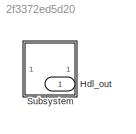
MODEL slx_2f3372ed5d20
KIND model
CONFIG AbsTol = auto
CONFIG EnableMultiTasking = off
CONFIG FixedStep = auto
CONFIG MaxStep = auto
CONFIG MinStep = auto
CONFIG RelTol = 1e-3
CONFIG SampleTimeConstraint = Unconstrained
CONFIG SolverName = VariableStepAuto
CONFIG StartTime = 0.0
CONFIG StopTime = 10.0
BLOCK [Outport] Hdl_out
  OutDataTypeStr = uint8
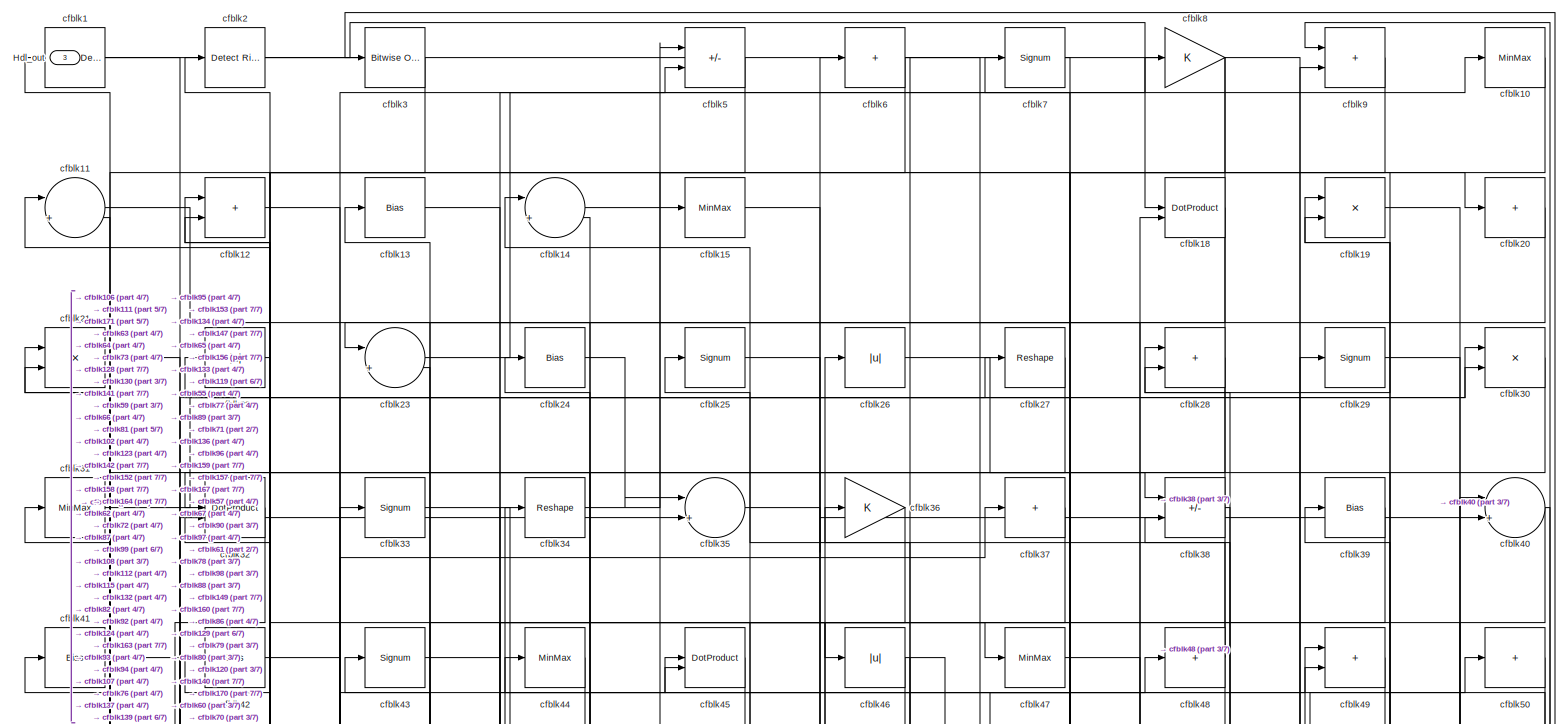
[diagram: Subsystem - part 1/7, full width, top band]
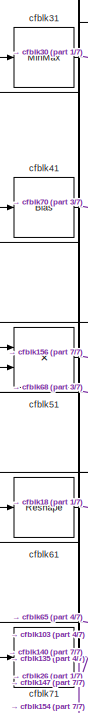
[diagram: Subsystem - part 2/7, top left region]
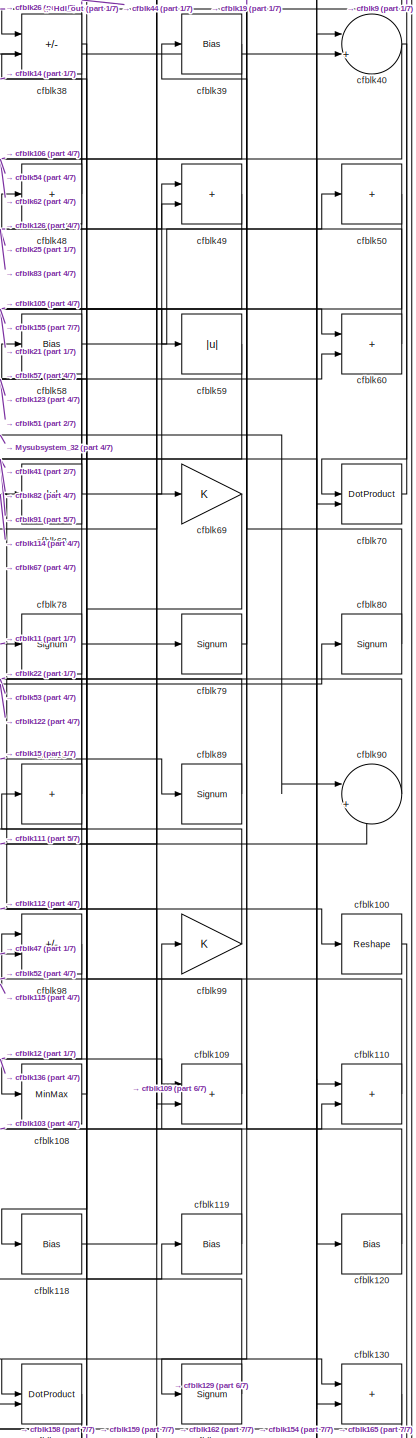
[diagram: Subsystem - part 3/7, middle right region]
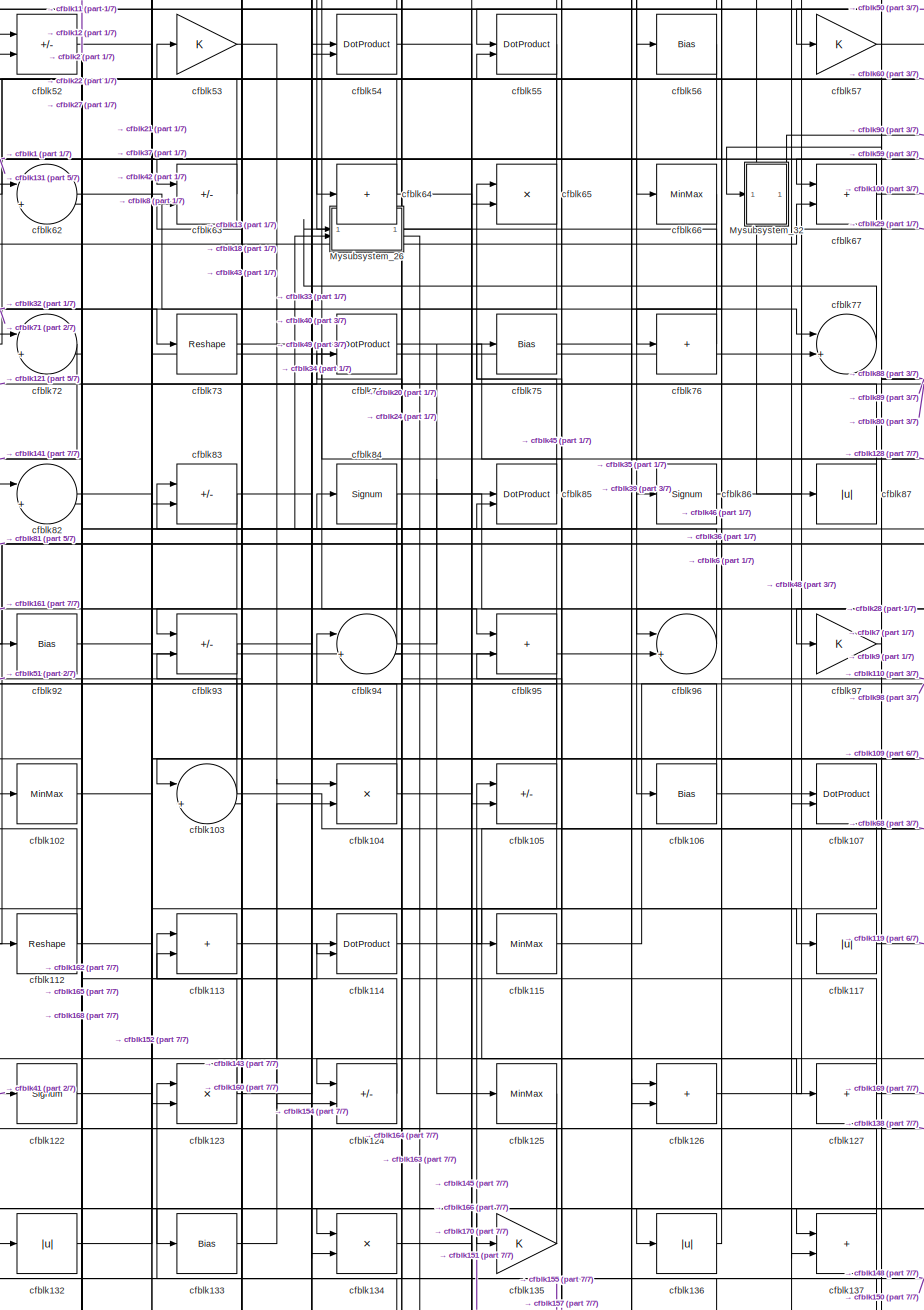
[diagram: Subsystem - part 4/7, central region]
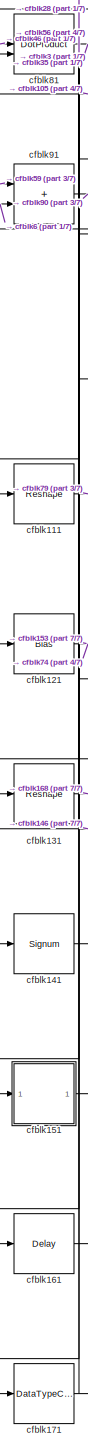
[diagram: Subsystem - part 5/7, bottom left region]
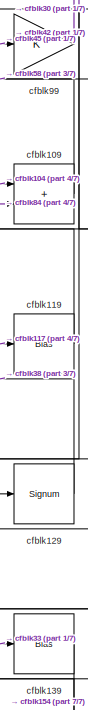
[diagram: Subsystem - part 6/7, middle right region]
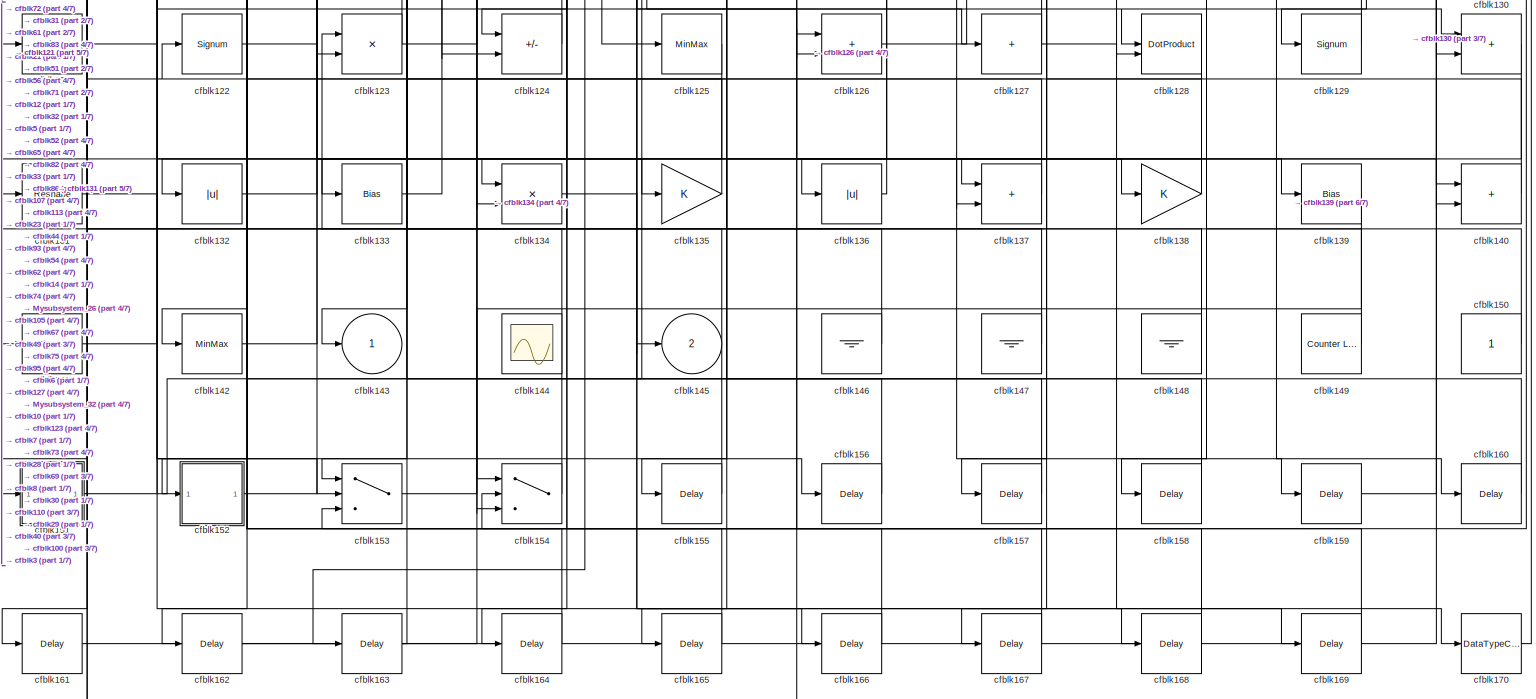
[diagram: Subsystem - part 7/7, full width, bottom band]
BLOCK [SubSystem] Subsystem
BLOCK [Outport] Subsystem/Hdl_out
  OutDataTypeStr = uint8
  Port = 3
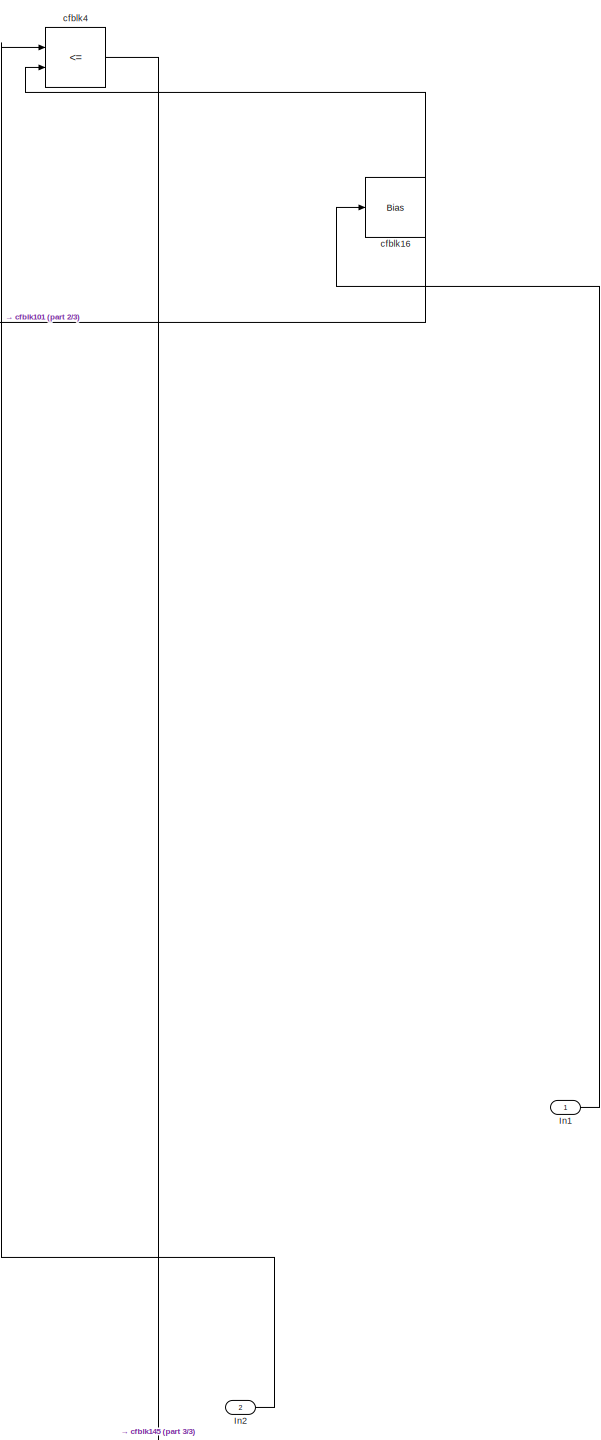
[diagram: Subsystem/Mysubsystem_26 - part 1/3, top right region]
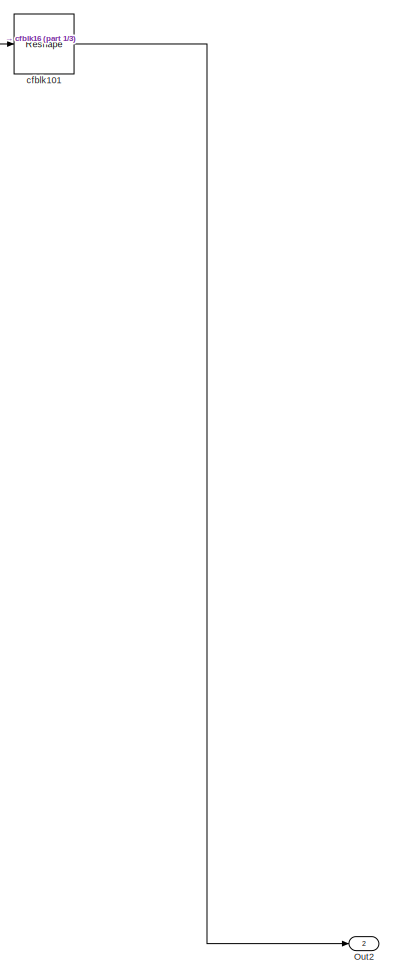
[diagram: Subsystem/Mysubsystem_26 - part 2/3, bottom left region]
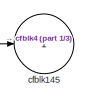
[diagram: Subsystem/Mysubsystem_26 - part 3/3, bottom center region]
BLOCK [SubSystem] Subsystem/Mysubsystem_26
  RTWFcnName = Mysubsystem_26
  RTWFcnNameOpts = User specified
  RTWFileNameOpts = Use function name
  RTWSystemCode = Reusable function
  TreatAsAtomicUnit = on
BLOCK [Inport] Subsystem/Mysubsystem_26/In1
BLOCK [Inport] Subsystem/Mysubsystem_26/In2
  Port = 2
BLOCK [Outport] Subsystem/Mysubsystem_26/Out2
  Port = 2
BLOCK [Reshape] Subsystem/Mysubsystem_26/cfblk101
BLOCK [Outport] Subsystem/Mysubsystem_26/cfblk145
  VectorParamsAs1DForOutWhenUnconnected = off
BLOCK [Bias] Subsystem/Mysubsystem_26/cfblk16
  Bias = 0.0
  SaturateOnIntegerOverflow = off
BLOCK [RelationalOperator] Subsystem/Mysubsystem_26/cfblk4
  InputSameDT = off
  Operator = <=
  OutDataTypeStr = boolean
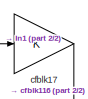
[diagram: Subsystem/Mysubsystem_32 - part 1/2, top left region]
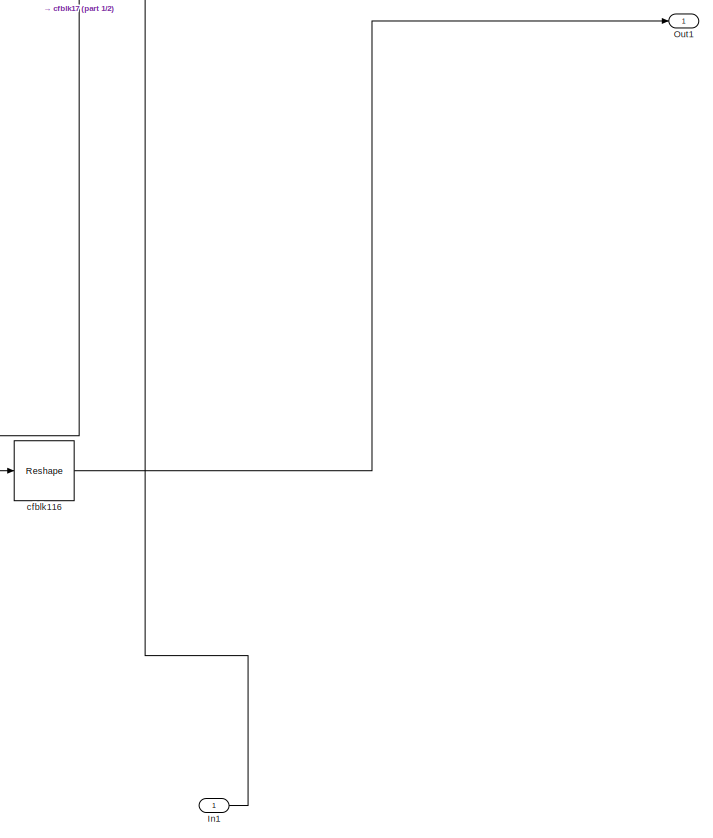
[diagram: Subsystem/Mysubsystem_32 - part 2/2, full width, bottom band]
BLOCK [SubSystem] Subsystem/Mysubsystem_32
  RTWFcnName = Mysubsystem_32
  RTWFcnNameOpts = User specified
  RTWFileNameOpts = Use function name
  RTWSystemCode = Reusable function
  TreatAsAtomicUnit = on
BLOCK [Inport] Subsystem/Mysubsystem_32/In1
BLOCK [Outport] Subsystem/Mysubsystem_32/Out1
BLOCK [Reshape] Subsystem/Mysubsystem_32/cfblk116
BLOCK [Gain] Subsystem/Mysubsystem_32/cfblk17
BLOCK [Reference] Subsystem/cfblk1  REF=simulink/Logic and Bit
Operations/Detect
Decrease
  LibrarySourceBlock = hdlsllib/Logic and Bit\nOperations/Detect\nDecrease
  SourceBlock = simulink/Logic and Bit\nOperations/Detect\nDecrease
  SourceType = Detect Decrease
BLOCK [MinMax] Subsystem/cfblk10
  OutDataTypeStr = uint8
BLOCK [Reshape] Subsystem/cfblk100
BLOCK [MinMax] Subsystem/cfblk102
  OutDataTypeStr = uint8
BLOCK [Sum] Subsystem/cfblk103
  Inputs = |++
  OutDataTypeStr = uint8
BLOCK [Product] Subsystem/cfblk104
  Inputs = */
  OutDataTypeStr = uint8
  RndMeth = Zero
  SaturateOnIntegerOverflow = on
BLOCK [Sum] Subsystem/cfblk105
  IconShape = rectangular
  Inputs = +-
  OutDataTypeStr = uint8
BLOCK [Bias] Subsystem/cfblk106
  Bias = 0.0
  SaturateOnIntegerOverflow = off
BLOCK [DotProduct] Subsystem/cfblk107
  OutDataTypeStr = uint8
BLOCK [MinMax] Subsystem/cfblk108
  OutDataTypeStr = uint8
BLOCK [Sum] Subsystem/cfblk109
  IconShape = rectangular
  OutDataTypeStr = uint8
BLOCK [Sum] Subsystem/cfblk11
  Inputs = |++
  OutDataTypeStr = uint8
BLOCK [Sum] Subsystem/cfblk110
  IconShape = rectangular
  OutDataTypeStr = uint8
BLOCK [Reshape] Subsystem/cfblk111
BLOCK [Reshape] Subsystem/cfblk112
BLOCK [Sum] Subsystem/cfblk113
  IconShape = rectangular
  OutDataTypeStr = uint8
BLOCK [DotProduct] Subsystem/cfblk114
  OutDataTypeStr = uint8
BLOCK [MinMax] Subsystem/cfblk115
  OutDataTypeStr = uint8
BLOCK [Abs] Subsystem/cfblk117
  OutDataTypeStr = uint8
  SaturateOnIntegerOverflow = off
BLOCK [Bias] Subsystem/cfblk118
  Bias = 0.0
  SaturateOnIntegerOverflow = off
BLOCK [Bias] Subsystem/cfblk119
  Bias = 0.0
  SaturateOnIntegerOverflow = off
BLOCK [Sum] Subsystem/cfblk12
  IconShape = rectangular
  OutDataTypeStr = uint8
BLOCK [Bias] Subsystem/cfblk120
  Bias = 0.0
  SaturateOnIntegerOverflow = off
BLOCK [Bias] Subsystem/cfblk121
  Bias = 0.0
  SaturateOnIntegerOverflow = off
BLOCK [Signum] Subsystem/cfblk122
BLOCK [Product] Subsystem/cfblk123
  Inputs = */
  OutDataTypeStr = uint8
  RndMeth = Zero
  SaturateOnIntegerOverflow = on
BLOCK [Sum] Subsystem/cfblk124
  IconShape = rectangular
  Inputs = +-
  OutDataTypeStr = uint8
BLOCK [MinMax] Subsystem/cfblk125
  OutDataTypeStr = uint8
BLOCK [Sum] Subsystem/cfblk126
  IconShape = rectangular
  OutDataTypeStr = uint8
BLOCK [Sum] Subsystem/cfblk127
  IconShape = rectangular
  Inputs = +
  OutDataTypeStr = uint8
BLOCK [DotProduct] Subsystem/cfblk128
  OutDataTypeStr = uint8
BLOCK [Signum] Subsystem/cfblk129
BLOCK [Bias] Subsystem/cfblk13
  Bias = 0.0
  SaturateOnIntegerOverflow = off
BLOCK [Sum] Subsystem/cfblk130
  IconShape = rectangular
  OutDataTypeStr = uint8
BLOCK [Reshape] Subsystem/cfblk131
BLOCK [Abs] Subsystem/cfblk132
  OutDataTypeStr = uint8
  SaturateOnIntegerOverflow = off
BLOCK [Bias] Subsystem/cfblk133
  Bias = 0.0
  SaturateOnIntegerOverflow = off
BLOCK [Product] Subsystem/cfblk134
  Inputs = */
  OutDataTypeStr = uint8
  RndMeth = Zero
  SaturateOnIntegerOverflow = on
BLOCK [Gain] Subsystem/cfblk135
  OutDataTypeStr = uint8
BLOCK [Abs] Subsystem/cfblk136
  OutDataTypeStr = uint8
  SaturateOnIntegerOverflow = off
BLOCK [Sum] Subsystem/cfblk137
  IconShape = rectangular
  OutDataTypeStr = uint8
BLOCK [Gain] Subsystem/cfblk138
  OutDataTypeStr = uint8
BLOCK [Bias] Subsystem/cfblk139
  Bias = 0.0
  SaturateOnIntegerOverflow = off
BLOCK [Sum] Subsystem/cfblk14
  Inputs = |++
  OutDataTypeStr = uint8
BLOCK [Sum] Subsystem/cfblk140
  IconShape = rectangular
  OutDataTypeStr = uint8
BLOCK [Signum] Subsystem/cfblk141
BLOCK [MinMax] Subsystem/cfblk142
  OutDataTypeStr = uint8
BLOCK [Outport] Subsystem/cfblk143
  OutDataTypeStr = uint8
  VectorParamsAs1DForOutWhenUnconnected = off
BLOCK [Scope] Subsystem/cfblk144
  Floating = on
  NumInputPorts = 1
  ScopeSpecificationString = Simulink.scopes.TimeScopeBlockCfg('CurrentConfiguration', extmgr.ConfigurationSet(extmgr.Configuration('Core','General UI',true,'FigureColor',[0.156862745098039 0.156862745098039 0.156862745098039]),extmgr.Configuration('Core','Source UI',true),extmgr.Configuration('Sources','WiredSimulink',true,'DataLoggingSaveFormat','StructureWithTime','DataLoggingLimitDataPoints',true,'DataLoggingDecimation','...<+2674ch>
BLOCK [Outport] Subsystem/cfblk145
  OutDataTypeStr = uint8
  Port = 2
  VectorParamsAs1DForOutWhenUnconnected = off
BLOCK [Ground] Subsystem/cfblk146
BLOCK [Ground] Subsystem/cfblk147
BLOCK [Ground] Subsystem/cfblk148
BLOCK [Reference] Subsystem/cfblk149  REF=hdlsllib/Sources/Counter
Limited
  SourceBlock = hdlsllib/Sources/Counter\nLimited
  SourceType = Counter Limited
BLOCK [MinMax] Subsystem/cfblk15
  OutDataTypeStr = uint8
BLOCK [Constant] Subsystem/cfblk150
  OutDataTypeStr = uint8
  SampleTime = -1
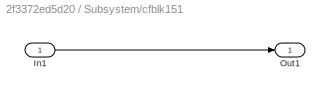
BLOCK [SubSystem] Subsystem/cfblk151
  LibrarySourceBlock = hdlsllib/Ports &\nSubsystems/Subsystem
BLOCK [Inport] Subsystem/cfblk151/In1
BLOCK [Outport] Subsystem/cfblk151/Out1
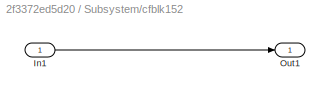
BLOCK [SubSystem] Subsystem/cfblk152
  LibrarySourceBlock = hdlsllib/Ports &\nSubsystems/Subsystem
BLOCK [Inport] Subsystem/cfblk152/In1
BLOCK [Outport] Subsystem/cfblk152/Out1
BLOCK [Switch] Subsystem/cfblk153
  InputSameDT = off
  OutDataTypeStr = uint8
  SaturateOnIntegerOverflow = off
BLOCK [Switch] Subsystem/cfblk154
  InputSameDT = off
  OutDataTypeStr = uint8
  SaturateOnIntegerOverflow = off
BLOCK [Delay] Subsystem/cfblk155
  InputPortMap = u0
  SampleTime = 1
BLOCK [Delay] Subsystem/cfblk156
  InputPortMap = u0
  SampleTime = 1
BLOCK [Delay] Subsystem/cfblk157
  InputPortMap = u0
  SampleTime = 1
BLOCK [Delay] Subsystem/cfblk158
  InputPortMap = u0
  SampleTime = 1
BLOCK [Delay] Subsystem/cfblk159
  InputPortMap = u0
  SampleTime = 1
BLOCK [Delay] Subsystem/cfblk160
  InputPortMap = u0
  SampleTime = 1
BLOCK [Delay] Subsystem/cfblk161
  InputPortMap = u0
  SampleTime = 1
BLOCK [Delay] Subsystem/cfblk162
  InputPortMap = u0
  SampleTime = 1
BLOCK [Delay] Subsystem/cfblk163
  InputPortMap = u0
  SampleTime = 1
BLOCK [Delay] Subsystem/cfblk164
  InputPortMap = u0
  SampleTime = 1
BLOCK [Delay] Subsystem/cfblk165
  InputPortMap = u0
  SampleTime = 1
BLOCK [Delay] Subsystem/cfblk166
  InputPortMap = u0
  SampleTime = 1
BLOCK [Delay] Subsystem/cfblk167
  InputPortMap = u0
  SampleTime = 1
BLOCK [Delay] Subsystem/cfblk168
  InputPortMap = u0
  SampleTime = 1
BLOCK [Delay] Subsystem/cfblk169
  InputPortMap = u0
  SampleTime = 1
BLOCK [DataTypeConversion] Subsystem/cfblk170
  OutDataTypeStr = uint8
  RndMeth = Floor
  SaturateOnIntegerOverflow = off
BLOCK [DataTypeConversion] Subsystem/cfblk171
  OutDataTypeStr = uint8
  RndMeth = Floor
  SaturateOnIntegerOverflow = off
BLOCK [DotProduct] Subsystem/cfblk18
  OutDataTypeStr = uint8
BLOCK [Product] Subsystem/cfblk19
  Inputs = */
  OutDataTypeStr = uint8
  RndMeth = Zero
  SaturateOnIntegerOverflow = on
BLOCK [Reference] Subsystem/cfblk2  REF=hdlsllib/Logic and Bit
Operations/Detect Rise
Positive
  SourceBlock = hdlsllib/Logic and Bit\nOperations/Detect Rise\nPositive
  SourceType = Detect Rise Positive
BLOCK [Sum] Subsystem/cfblk20
  IconShape = rectangular
  Inputs = +
  OutDataTypeStr = uint8
BLOCK [Product] Subsystem/cfblk21
  Inputs = */
  OutDataTypeStr = uint8
  RndMeth = Zero
  SaturateOnIntegerOverflow = on
BLOCK [Abs] Subsystem/cfblk22
  OutDataTypeStr = uint8
  SaturateOnIntegerOverflow = off
BLOCK [Sum] Subsystem/cfblk23
  Inputs = |++
  OutDataTypeStr = uint8
BLOCK [Bias] Subsystem/cfblk24
  Bias = 0.0
  SaturateOnIntegerOverflow = off
BLOCK [Signum] Subsystem/cfblk25
BLOCK [Abs] Subsystem/cfblk26
  OutDataTypeStr = uint8
  SaturateOnIntegerOverflow = off
BLOCK [Reshape] Subsystem/cfblk27
BLOCK [Sum] Subsystem/cfblk28
  IconShape = rectangular
  OutDataTypeStr = uint8
BLOCK [Signum] Subsystem/cfblk29
BLOCK [Reference] Subsystem/cfblk3  REF=simulink/Logic and Bit
Operations/Bitwise
Operator
  LibrarySourceBlock = hdlsllib/Logic and Bit\nOperations/Bitwise\nOperator
  SourceBlock = simulink/Logic and Bit\nOperations/Bitwise\nOperator
  SourceType = Bitwise Operator
BLOCK [Product] Subsystem/cfblk30
  Inputs = */
  OutDataTypeStr = uint8
  RndMeth = Zero
  SaturateOnIntegerOverflow = on
BLOCK [MinMax] Subsystem/cfblk31
  OutDataTypeStr = uint8
BLOCK [DotProduct] Subsystem/cfblk32
  OutDataTypeStr = uint8
BLOCK [Signum] Subsystem/cfblk33
BLOCK [Reshape] Subsystem/cfblk34
BLOCK [Sum] Subsystem/cfblk35
  Inputs = |++
  OutDataTypeStr = uint8
BLOCK [Gain] Subsystem/cfblk36
  OutDataTypeStr = uint8
BLOCK [Sum] Subsystem/cfblk37
  IconShape = rectangular
  Inputs = +
  OutDataTypeStr = uint8
BLOCK [Sum] Subsystem/cfblk38
  IconShape = rectangular
  Inputs = +-
  OutDataTypeStr = uint8
BLOCK [Bias] Subsystem/cfblk39
  Bias = 0.0
  SaturateOnIntegerOverflow = off
BLOCK [Sum] Subsystem/cfblk40
  Inputs = |++
  OutDataTypeStr = uint8
BLOCK [Bias] Subsystem/cfblk41
  Bias = 0.0
  SaturateOnIntegerOverflow = off
BLOCK [Bias] Subsystem/cfblk42
  Bias = 0.0
  SaturateOnIntegerOverflow = off
BLOCK [Signum] Subsystem/cfblk43
BLOCK [MinMax] Subsystem/cfblk44
  OutDataTypeStr = uint8
BLOCK [DotProduct] Subsystem/cfblk45
  OutDataTypeStr = uint8
BLOCK [Abs] Subsystem/cfblk46
  OutDataTypeStr = uint8
  SaturateOnIntegerOverflow = off
BLOCK [MinMax] Subsystem/cfblk47
  OutDataTypeStr = uint8
BLOCK [Sum] Subsystem/cfblk48
  IconShape = rectangular
  Inputs = +
  OutDataTypeStr = uint8
BLOCK [Sum] Subsystem/cfblk49
  IconShape = rectangular
  OutDataTypeStr = uint8
BLOCK [Sum] Subsystem/cfblk5
  IconShape = rectangular
  Inputs = +-
  OutDataTypeStr = uint8
BLOCK [Sum] Subsystem/cfblk50
  IconShape = rectangular
  Inputs = +
  OutDataTypeStr = uint8
BLOCK [Product] Subsystem/cfblk51
  Inputs = */
  OutDataTypeStr = uint8
  RndMeth = Zero
  SaturateOnIntegerOverflow = on
BLOCK [Sum] Subsystem/cfblk52
  IconShape = rectangular
  Inputs = +-
  OutDataTypeStr = uint8
BLOCK [Gain] Subsystem/cfblk53
  OutDataTypeStr = uint8
BLOCK [DotProduct] Subsystem/cfblk54
  OutDataTypeStr = uint8
BLOCK [DotProduct] Subsystem/cfblk55
  OutDataTypeStr = uint8
BLOCK [Bias] Subsystem/cfblk56
  Bias = 0.0
  SaturateOnIntegerOverflow = off
BLOCK [Gain] Subsystem/cfblk57
  OutDataTypeStr = uint8
BLOCK [Bias] Subsystem/cfblk58
  Bias = 0.0
  SaturateOnIntegerOverflow = off
BLOCK [Abs] Subsystem/cfblk59
  OutDataTypeStr = uint8
  SaturateOnIntegerOverflow = off
BLOCK [Sum] Subsystem/cfblk6
  IconShape = rectangular
  Inputs = +
  OutDataTypeStr = uint8
BLOCK [Sum] Subsystem/cfblk60
  IconShape = rectangular
  OutDataTypeStr = uint8
BLOCK [Reshape] Subsystem/cfblk61
BLOCK [Sum] Subsystem/cfblk62
  Inputs = |++
  OutDataTypeStr = uint8
BLOCK [Sum] Subsystem/cfblk63
  IconShape = rectangular
  Inputs = +-
  OutDataTypeStr = uint8
BLOCK [Sum] Subsystem/cfblk64
  IconShape = rectangular
  Inputs = +
  OutDataTypeStr = uint8
BLOCK [Product] Subsystem/cfblk65
  Inputs = */
  OutDataTypeStr = uint8
  RndMeth = Zero
  SaturateOnIntegerOverflow = on
BLOCK [MinMax] Subsystem/cfblk66
  OutDataTypeStr = uint8
BLOCK [Sum] Subsystem/cfblk67
  IconShape = rectangular
  OutDataTypeStr = uint8
BLOCK [Abs] Subsystem/cfblk68
  OutDataTypeStr = uint8
  SaturateOnIntegerOverflow = off
BLOCK [Gain] Subsystem/cfblk69
  OutDataTypeStr = uint8
BLOCK [Signum] Subsystem/cfblk7
BLOCK [DotProduct] Subsystem/cfblk70
  OutDataTypeStr = uint8
BLOCK [MinMax] Subsystem/cfblk71
  OutDataTypeStr = uint8
BLOCK [Sum] Subsystem/cfblk72
  Inputs = |++
  OutDataTypeStr = uint8
BLOCK [Reshape] Subsystem/cfblk73
BLOCK [DotProduct] Subsystem/cfblk74
  OutDataTypeStr = uint8
BLOCK [Bias] Subsystem/cfblk75
  Bias = 0.0
  SaturateOnIntegerOverflow = off
BLOCK [Sum] Subsystem/cfblk76
  IconShape = rectangular
  Inputs = +
  OutDataTypeStr = uint8
BLOCK [Sum] Subsystem/cfblk77
  Inputs = |++
  OutDataTypeStr = uint8
BLOCK [Signum] Subsystem/cfblk78
BLOCK [Signum] Subsystem/cfblk79
BLOCK [Gain] Subsystem/cfblk8
  OutDataTypeStr = uint8
BLOCK [Signum] Subsystem/cfblk80
BLOCK [DotProduct] Subsystem/cfblk81
  OutDataTypeStr = uint8
BLOCK [Sum] Subsystem/cfblk82
  Inputs = |++
  OutDataTypeStr = uint8
BLOCK [Sum] Subsystem/cfblk83
  IconShape = rectangular
  Inputs = +-
  OutDataTypeStr = uint8
BLOCK [Signum] Subsystem/cfblk84
BLOCK [DotProduct] Subsystem/cfblk85
  OutDataTypeStr = uint8
BLOCK [Signum] Subsystem/cfblk86
BLOCK [Abs] Subsystem/cfblk87
  OutDataTypeStr = uint8
  SaturateOnIntegerOverflow = off
BLOCK [Sum] Subsystem/cfblk88
  IconShape = rectangular
  Inputs = +
  OutDataTypeStr = uint8
BLOCK [Signum] Subsystem/cfblk89
BLOCK [Sum] Subsystem/cfblk9
  IconShape = rectangular
  OutDataTypeStr = uint8
BLOCK [Sum] Subsystem/cfblk90
  Inputs = |++
  OutDataTypeStr = uint8
BLOCK [Sum] Subsystem/cfblk91
  IconShape = rectangular
  OutDataTypeStr = uint8
BLOCK [Bias] Subsystem/cfblk92
  Bias = 0.0
  SaturateOnIntegerOverflow = off
BLOCK [Sum] Subsystem/cfblk93
  IconShape = rectangular
  Inputs = +-
  OutDataTypeStr = uint8
BLOCK [Sum] Subsystem/cfblk94
  Inputs = |++
  OutDataTypeStr = uint8
BLOCK [Sum] Subsystem/cfblk95
  IconShape = rectangular
  OutDataTypeStr = uint8
BLOCK [Sum] Subsystem/cfblk96
  Inputs = |++
  OutDataTypeStr = uint8
BLOCK [Gain] Subsystem/cfblk97
  OutDataTypeStr = uint8
BLOCK [Sum] Subsystem/cfblk98
  IconShape = rectangular
  Inputs = +-
  OutDataTypeStr = uint8
BLOCK [Gain] Subsystem/cfblk99
  OutDataTypeStr = uint8
LINE Subsystem/Mysubsystem_26/In1:1 -> Subsystem/Mysubsystem_26/cfblk16:1
LINE Subsystem/Mysubsystem_26/In2:1 -> Subsystem/Mysubsystem_26/cfblk4:1
LINE Subsystem/Mysubsystem_26/cfblk101:1 -> Subsystem/Mysubsystem_26/Out2:1
NET Subsystem/Mysubsystem_26/cfblk16:1 -> Subsystem/Mysubsystem_26/cfblk101:1, Subsystem/Mysubsystem_26/cfblk4:2
LINE Subsystem/Mysubsystem_26/cfblk4:1 -> Subsystem/Mysubsystem_26/cfblk145:1
LINE Subsystem/Mysubsystem_26:1 -> Subsystem/cfblk145:1
LINE Subsystem/Mysubsystem_26:2 -> Subsystem/cfblk163:1
LINE Subsystem/Mysubsystem_32/In1:1 -> Subsystem/Mysubsystem_32/cfblk17:1
LINE Subsystem/Mysubsystem_32/cfblk116:1 -> Subsystem/Mysubsystem_32/Out1:1
LINE Subsystem/Mysubsystem_32/cfblk17:1 -> Subsystem/Mysubsystem_32/cfblk116:1
LINE Subsystem/Mysubsystem_32:1 -> Subsystem/cfblk90:1
LINE Subsystem/cfblk100:1 -> Subsystem/cfblk154:2
LINE Subsystem/cfblk102:1 -> Subsystem/cfblk135:1
NET Subsystem/cfblk103:1 -> Subsystem/cfblk110:2, Subsystem/cfblk117:1, Subsystem/cfblk51:1
NET Subsystem/cfblk104:1 -> Subsystem/cfblk109:1, Subsystem/cfblk94:1
NET Subsystem/cfblk105:1 -> Subsystem/cfblk164:1, Subsystem/cfblk81:2, Subsystem/cfblk92:1
NET Subsystem/cfblk106:1 -> Subsystem/cfblk107:1, Subsystem/cfblk1:1
LINE Subsystem/cfblk107:1 -> Subsystem/cfblk143:1
LINE Subsystem/cfblk108:1 -> Subsystem/cfblk88:1
LINE Subsystem/cfblk109:1 -> Subsystem/cfblk58:1
NET Subsystem/cfblk10:1 -> Subsystem/cfblk167:1, Subsystem/cfblk28:1
LINE Subsystem/cfblk110:1 -> Subsystem/cfblk52:1
LINE Subsystem/cfblk111:1 -> Subsystem/cfblk79:1
NET Subsystem/cfblk112:1 -> Subsystem/cfblk134:2, Subsystem/cfblk21:2, Subsystem/cfblk45:1
LINE Subsystem/cfblk113:1 -> Subsystem/cfblk114:2
LINE Subsystem/cfblk114:1 -> Subsystem/cfblk68:1
LINE Subsystem/cfblk115:1 -> Subsystem/cfblk98:1
LINE Subsystem/cfblk117:1 -> Subsystem/cfblk119:1
LINE Subsystem/cfblk118:1 -> Subsystem/cfblk69:1
NET Subsystem/cfblk119:1 -> Subsystem/cfblk45:2, Subsystem/cfblk99:1
LINE Subsystem/cfblk11:1 -> Subsystem/cfblk78:1
LINE Subsystem/cfblk120:1 -> Subsystem/cfblk39:1
NET Subsystem/cfblk121:1 -> Subsystem/cfblk153:2, Subsystem/cfblk74:1
NET Subsystem/cfblk122:1 -> Subsystem/cfblk55:2, Subsystem/cfblk80:1
NET Subsystem/cfblk123:1 -> Subsystem/cfblk12:1, Subsystem/cfblk60:2
LINE Subsystem/cfblk124:1 -> Subsystem/cfblk13:1
LINE Subsystem/cfblk125:1 -> Subsystem/cfblk132:1
LINE Subsystem/cfblk126:1 -> Subsystem/cfblk48:1
NET Subsystem/cfblk127:1 -> Subsystem/cfblk169:1, Subsystem/cfblk84:1
LINE Subsystem/cfblk128:1 -> Subsystem/cfblk151:1
LINE Subsystem/cfblk129:1 -> Subsystem/cfblk38:2
LINE Subsystem/cfblk12:1 -> Subsystem/cfblk108:1
LINE Subsystem/cfblk130:1 -> Subsystem/cfblk165:1
LINE Subsystem/cfblk131:1 -> Subsystem/cfblk168:1
NET Subsystem/cfblk132:1 -> Subsystem/cfblk114:1, Subsystem/cfblk37:1
NET Subsystem/cfblk133:1 -> Subsystem/cfblk104:2, Subsystem/cfblk83:1
LINE Subsystem/cfblk134:1 -> Subsystem/cfblk166:1
NET Subsystem/cfblk135:1 -> Subsystem/cfblk122:1, Subsystem/cfblk41:1
LINE Subsystem/cfblk136:1 -> Subsystem/cfblk36:1
LINE Subsystem/cfblk137:1 -> Subsystem/cfblk113:1
LINE Subsystem/cfblk138:1 -> Subsystem/cfblk72:2
LINE Subsystem/cfblk139:1 -> Subsystem/cfblk154:3
LINE Subsystem/cfblk13:1 -> Subsystem/cfblk107:2
LINE Subsystem/cfblk140:1 -> Subsystem/cfblk7:1
NET Subsystem/cfblk141:1 -> Subsystem/cfblk30:2, Subsystem/cfblk56:1
LINE Subsystem/cfblk142:1 -> Subsystem/cfblk33:1
LINE Subsystem/cfblk146:1 -> Subsystem/cfblk121:1
NET Subsystem/cfblk147:1 -> Subsystem/cfblk14:2, Subsystem/cfblk61:1
NET Subsystem/cfblk148:1 -> Subsystem/Mysubsystem_32:1, Subsystem/cfblk123:1
LINE Subsystem/cfblk149:1 -> Subsystem/cfblk28:2
LINE Subsystem/cfblk14:1 -> Subsystem/cfblk20:1
LINE Subsystem/cfblk150:1 -> Subsystem/cfblk75:1
LINE Subsystem/cfblk151/In1:1 -> Subsystem/cfblk151/Out1:1
NET Subsystem/cfblk151:1 -> Subsystem/cfblk105:1, Subsystem/cfblk67:2
LINE Subsystem/cfblk152/In1:1 -> Subsystem/cfblk152/Out1:1
LINE Subsystem/cfblk152:1 -> Subsystem/cfblk86:1
LINE Subsystem/cfblk153:1 -> Subsystem/cfblk5:2
LINE Subsystem/cfblk154:1 -> Subsystem/cfblk31:1
LINE Subsystem/cfblk155:1 -> Subsystem/cfblk113:2
LINE Subsystem/cfblk156:1 -> Subsystem/cfblk5:1
LINE Subsystem/cfblk157:1 -> Subsystem/cfblk95:2
LINE Subsystem/cfblk158:1 -> Subsystem/cfblk12:2
LINE Subsystem/cfblk159:1 -> Subsystem/cfblk40:1
LINE Subsystem/cfblk15:1 -> Subsystem/cfblk89:1
LINE Subsystem/cfblk160:1 -> Subsystem/cfblk93:2
LINE Subsystem/cfblk161:1 -> Subsystem/cfblk54:1
LINE Subsystem/cfblk162:1 -> Subsystem/cfblk110:1
LINE Subsystem/cfblk163:1 -> Subsystem/cfblk23:2
LINE Subsystem/cfblk164:1 -> Subsystem/cfblk32:2
LINE Subsystem/cfblk165:1 -> Subsystem/cfblk52:2
LINE Subsystem/cfblk166:1 -> Subsystem/cfblk126:1
LINE Subsystem/cfblk167:1 -> Subsystem/cfblk153:3
LINE Subsystem/cfblk168:1 -> Subsystem/cfblk82:2
LINE Subsystem/cfblk169:1 -> Subsystem/cfblk74:2
LINE Subsystem/cfblk170:1 -> Subsystem/cfblk3:1
NET Subsystem/cfblk171:1 -> Subsystem/cfblk6:1, Subsystem/cfblk91:2
LINE Subsystem/cfblk18:1 -> Subsystem/cfblk93:1
LINE Subsystem/cfblk19:1 -> Subsystem/cfblk120:1
LINE Subsystem/cfblk1:1 -> Subsystem/cfblk66:1
NET Subsystem/cfblk20:1 -> Subsystem/cfblk23:1, Subsystem/cfblk94:2
NET Subsystem/cfblk21:1 -> Subsystem/cfblk128:1, Subsystem/cfblk130:1, Subsystem/cfblk59:1
LINE Subsystem/cfblk22:1 -> Subsystem/cfblk62:1
LINE Subsystem/cfblk23:1 -> Subsystem/cfblk10:1
LINE Subsystem/cfblk24:1 -> Subsystem/cfblk35:1
LINE Subsystem/cfblk25:1 -> Subsystem/cfblk40:2
LINE Subsystem/cfblk26:1 -> Subsystem/cfblk38:1
LINE Subsystem/cfblk27:1 -> Subsystem/cfblk72:1
NET Subsystem/cfblk28:1 -> Subsystem/cfblk111:1, Subsystem/cfblk134:1, Subsystem/cfblk57:1
LINE Subsystem/cfblk29:1 -> Subsystem/cfblk140:1
LINE Subsystem/cfblk2:1 -> Subsystem/cfblk18:1
NET Subsystem/cfblk30:1 -> Subsystem/cfblk129:1, Subsystem/cfblk152:1
LINE Subsystem/cfblk31:1 -> Subsystem/cfblk30:1
LINE Subsystem/cfblk32:1 -> Subsystem/cfblk73:1
NET Subsystem/cfblk33:1 -> Subsystem/cfblk137:2, Subsystem/cfblk139:1, Subsystem/cfblk95:1
LINE Subsystem/cfblk34:1 -> Subsystem/cfblk15:1
LINE Subsystem/cfblk35:1 -> Subsystem/cfblk77:1
LINE Subsystem/cfblk36:1 -> Subsystem/cfblk63:1
NET Subsystem/cfblk37:1 -> Subsystem/cfblk46:1, Subsystem/cfblk55:1
LINE Subsystem/cfblk38:1 -> Subsystem/cfblk118:1
NET Subsystem/cfblk39:1 -> Subsystem/cfblk106:1, Subsystem/cfblk62:2
LINE Subsystem/cfblk3:1 -> Subsystem/cfblk171:1
NET Subsystem/cfblk40:1 -> Subsystem/cfblk130:2, Subsystem/cfblk54:2, Subsystem/cfblk70:1
NET Subsystem/cfblk41:1 -> Subsystem/cfblk65:2, Subsystem/cfblk70:2
NET Subsystem/cfblk42:1 -> Subsystem/cfblk115:1, Subsystem/cfblk96:2
LINE Subsystem/cfblk43:1 -> Subsystem/cfblk47:1
LINE Subsystem/cfblk44:1 -> Subsystem/cfblk153:1
LINE Subsystem/cfblk45:1 -> Subsystem/cfblk133:1
NET Subsystem/cfblk46:1 -> Subsystem/cfblk76:1, Subsystem/cfblk81:1, Subsystem/cfblk87:1
LINE Subsystem/cfblk47:1 -> Subsystem/cfblk98:2
LINE Subsystem/cfblk48:1 -> Subsystem/cfblk14:1
LINE Subsystem/cfblk49:1 -> Subsystem/cfblk155:1
LINE Subsystem/cfblk50:1 -> Subsystem/cfblk105:2
LINE Subsystem/cfblk51:1 -> Subsystem/cfblk156:1
LINE Subsystem/cfblk52:1 -> Subsystem/cfblk64:1
NET Subsystem/cfblk53:1 -> Subsystem/cfblk104:1, Subsystem/cfblk124:2
LINE Subsystem/cfblk54:1 -> Subsystem/cfblk170:1
LINE Subsystem/cfblk55:1 -> Subsystem/cfblk83:2
LINE Subsystem/cfblk56:1 -> Subsystem/cfblk131:1
LINE Subsystem/cfblk57:1 -> Subsystem/cfblk60:1
LINE Subsystem/cfblk58:1 -> Subsystem/cfblk50:1
NET Subsystem/cfblk59:1 -> Subsystem/cfblk82:1, Subsystem/cfblk91:1
LINE Subsystem/cfblk5:1 -> Subsystem/cfblk142:1
LINE Subsystem/cfblk60:1 -> Subsystem/cfblk25:1
LINE Subsystem/cfblk61:1 -> Subsystem/cfblk18:2
LINE Subsystem/cfblk62:1 -> Subsystem/cfblk154:1
LINE Subsystem/cfblk63:1 -> Subsystem/cfblk11:2
NET Subsystem/cfblk64:1 -> Subsystem/cfblk126:2, Subsystem/cfblk21:1
NET Subsystem/cfblk65:1 -> Subsystem/cfblk162:1, Subsystem/cfblk24:1, Subsystem/cfblk71:1
LINE Subsystem/cfblk66:1 -> Subsystem/cfblk124:1
LINE Subsystem/cfblk67:1 -> Subsystem/cfblk100:1
NET Subsystem/cfblk68:1 -> Subsystem/cfblk49:1, Subsystem/cfblk51:2
LINE Subsystem/cfblk69:1 -> Subsystem/cfblk158:1
NET Subsystem/cfblk6:1 -> Subsystem/cfblk159:1, Subsystem/cfblk32:1, Subsystem/cfblk96:1
LINE Subsystem/cfblk70:1 -> Subsystem/cfblk9:1
NET Subsystem/cfblk71:1 -> Subsystem/cfblk140:2, Subsystem/cfblk26:1
LINE Subsystem/cfblk72:1 -> Subsystem/cfblk141:1
LINE Subsystem/cfblk73:1 -> Subsystem/cfblk128:2
NET Subsystem/cfblk74:1 -> Subsystem/cfblk125:1, Subsystem/cfblk127:1
LINE Subsystem/cfblk75:1 -> Subsystem/cfblk138:1
LINE Subsystem/cfblk76:1 -> Subsystem/cfblk34:1
LINE Subsystem/cfblk77:1 -> Subsystem/Mysubsystem_26:1
LINE Subsystem/cfblk78:1 -> Subsystem/cfblk9:2
LINE Subsystem/cfblk79:1 -> Subsystem/cfblk19:1
NET Subsystem/cfblk7:1 -> Subsystem/cfblk157:1, Subsystem/cfblk97:1
LINE Subsystem/cfblk80:1 -> Subsystem/cfblk19:2
LINE Subsystem/cfblk81:1 -> Subsystem/cfblk35:2
LINE Subsystem/cfblk82:1 -> Subsystem/cfblk27:1
NET Subsystem/cfblk83:1 -> Subsystem/cfblk161:1, Subsystem/cfblk49:2
NET Subsystem/cfblk84:1 -> Subsystem/cfblk103:1, Subsystem/cfblk109:2
LINE Subsystem/cfblk85:1 -> Subsystem/cfblk65:1
LINE Subsystem/cfblk86:1 -> Subsystem/cfblk29:1
LINE Subsystem/cfblk87:1 -> Subsystem/cfblk2:1
NET Subsystem/cfblk88:1 -> Subsystem/Hdl_out:1, Subsystem/cfblk112:1, Subsystem/cfblk44:1
LINE Subsystem/cfblk89:1 -> Subsystem/cfblk53:1
NET Subsystem/cfblk8:1 -> Subsystem/cfblk102:1, Subsystem/cfblk160:1
LINE Subsystem/cfblk90:1 -> Subsystem/cfblk22:1
LINE Subsystem/cfblk91:1 -> Subsystem/cfblk90:2
NET Subsystem/cfblk92:1 -> Subsystem/cfblk77:2, Subsystem/cfblk8:1
NET Subsystem/cfblk93:1 -> Subsystem/cfblk123:2, Subsystem/cfblk63:2, Subsystem/cfblk85:2
NET Subsystem/cfblk94:1 -> Subsystem/cfblk43:1, Subsystem/cfblk85:1
NET Subsystem/cfblk95:1 -> Subsystem/Mysubsystem_26:2, Subsystem/cfblk103:2
LINE Subsystem/cfblk96:1 -> Subsystem/cfblk11:1
LINE Subsystem/cfblk97:1 -> Subsystem/cfblk137:1
LINE Subsystem/cfblk98:1 -> Subsystem/cfblk136:1
LINE Subsystem/cfblk99:1 -> Subsystem/cfblk42:1
LINE Subsystem/cfblk9:1 -> Subsystem/cfblk67:1
note: NET lines group one-source signal fan-out (src -> all destinations, sorted); 1:1 wires keep LINE
